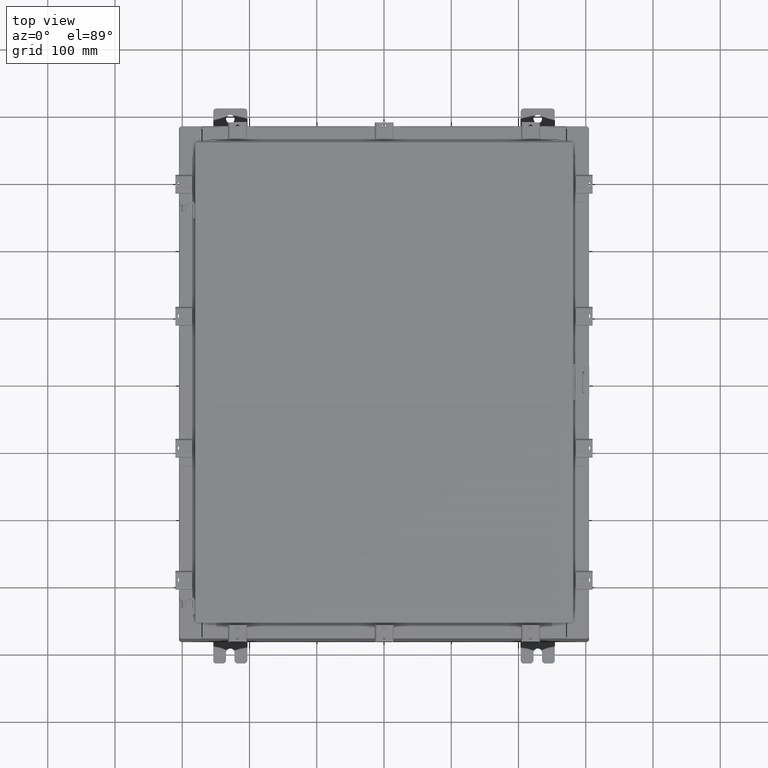
[diagram: clean part render]
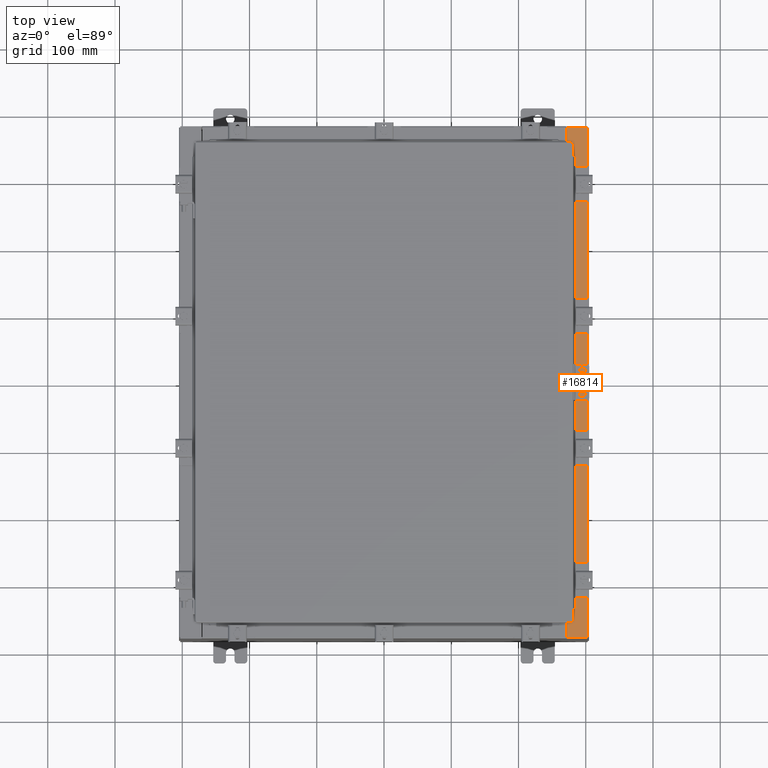
[diagram: same view with one face highlighted and labeled with its STEP entity id]
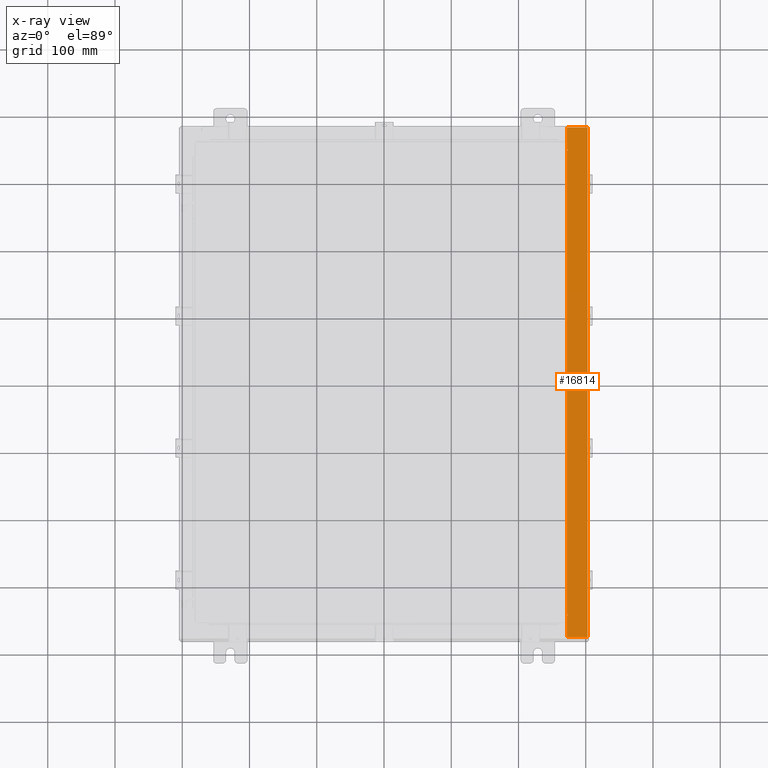
[diagram: x-ray of the same camera — body ghosted, the highlighted face saturated]
A machine part, top view. The second image highlights one B-rep face of the part: STEP entity #16814.
The next image is the same camera in x-ray: the body ghosted, the highlighted face saturated — about 0% of this face is hidden behind the body in this view.
In plain terms, the highlighted planar face has unit normal (-0, 0, -1).
Its self-contained STEP definition (entity closure, byte-faithful):
#813 = DIRECTION ( 'NONE',  ( -1.000000000000000000, 0.0000000000000000000, 7.132762385546384700E-015 ) ) ;
#1015 = DIRECTION ( 'NONE',  ( 7.132762385546384700E-015, 0.0000000000000000000, 1.000000000000000000 ) ) ;
#1368 = VECTOR ( 'NONE', #13267, 39.37007874015748100 ) ;
#1422 = EDGE_CURVE ( 'NONE', #15957, #22652, #3517, .T. ) ;
#2070 = CARTESIAN_POINT ( 'NONE',  ( 10.75005000000004100, 13.63109999999999800, 11.92530000000000900 ) ) ;
#2756 = CARTESIAN_POINT ( 'NONE',  ( 10.69970000000003900, 14.92529999999999800, 11.92530000000000900 ) ) ;
#2842 = LINE ( 'NONE', #10389, #21291 ) ;
#3045 = ORIENTED_EDGE ( 'NONE', *, *, #21147, .F. ) ;
#3236 = AXIS2_PLACEMENT_3D ( 'NONE', #9725, #22240, #11539 ) ;
#3377 = EDGE_CURVE ( 'NONE', #4716, #4833, #18521, .T. ) ;
#3517 = LINE ( 'NONE', #9927, #21963 ) ;
#3978 = VECTOR ( 'NONE', #4594, 39.37007874015748100 ) ;
#4181 = PLANE ( 'NONE',  #21023 ) ;
#4334 = CARTESIAN_POINT ( 'NONE',  ( 10.69970000000003900, -14.92529999999999800, 11.92530000000000900 ) ) ;
#4358 = EDGE_CURVE ( 'NONE', #14957, #5227, #17373, .T. ) ;
#4423 = LINE ( 'NONE', #9729, #8626 ) ;
#4431 = ORIENTED_EDGE ( 'NONE', *, *, #13402, .T. ) ;
#4594 = DIRECTION ( 'NONE',  ( 1.000000000000000000, 0.0000000000000000000, 0.0000000000000000000 ) ) ;
#4608 = FACE_OUTER_BOUND ( 'NONE', #9738, .T. ) ;
#4636 = DIRECTION ( 'NONE',  ( 1.000000000000000000, 0.0000000000000000000, 0.0000000000000000000 ) ) ;
#4656 = DIRECTION ( 'NONE',  ( -0.0000000000000000000, 1.000000000000000000, -0.0000000000000000000 ) ) ;
#4716 = VERTEX_POINT ( 'NONE', #21964 ) ;
#4833 = VERTEX_POINT ( 'NONE', #18672 ) ;
#5112 = CARTESIAN_POINT ( 'NONE',  ( 10.75005000000004100, -13.59375000000000000, 11.92530000000000900 ) ) ;
#5227 = VERTEX_POINT ( 'NONE', #10788 ) ;
#5678 = ORIENTED_EDGE ( 'NONE', *, *, #9904, .F. ) ;
#5695 = CIRCLE ( 'NONE', #3236, 0.01867499999999949400 ) ;
#6007 = VECTOR ( 'NONE', #9544, 39.37007874015748100 ) ;
#6059 = ORIENTED_EDGE ( 'NONE', *, *, #18012, .F. ) ;
#6931 = CARTESIAN_POINT ( 'NONE',  ( 11.91230000000003700, 14.92529999999999800, 11.92530000000000000 ) ) ;
#7769 = CARTESIAN_POINT ( 'NONE',  ( 8.532114493236847900E-014, 0.0000000000000000000, 11.92530000000008500 ) ) ;
#8142 = ORIENTED_EDGE ( 'NONE', *, *, #9925, .F. ) ;
#8205 = LINE ( 'NONE', #18231, #17186 ) ;
#8281 = VERTEX_POINT ( 'NONE', #15729 ) ;
#8626 = VECTOR ( 'NONE', #813, 39.37007874015748100 ) ;
#8733 = LINE ( 'NONE', #17139, #3978 ) ;
#9191 = EDGE_CURVE ( 'NONE', #20750, #17283, #5695, .T. ) ;
#9544 = DIRECTION ( 'NONE',  ( 1.000000000000000000, 0.0000000000000000000, -7.132762385546384700E-015 ) ) ;
#9581 = DIRECTION ( 'NONE',  ( -1.000000000000000000, 0.0000000000000000000, 7.132762385546384700E-015 ) ) ;
#9725 = CARTESIAN_POINT ( 'NONE',  ( 10.75005000000004100, -13.61242500000000000, 11.92530000000000900 ) ) ;
#9729 = CARTESIAN_POINT ( 'NONE',  ( 8.532114493236847900E-014, 14.92529999999999800, 11.92530000000008500 ) ) ;
#9738 = EDGE_LOOP ( 'NONE', ( #8142, #22502, #19140, #15583, #4431, #12502, #11867, #5678, #3045, #16665, #6059, #20440 ) ) ;
#9904 = EDGE_CURVE ( 'NONE', #8281, #17995, #18263, .T. ) ;
#9925 = EDGE_CURVE ( 'NONE', #15957, #20750, #8733, .T. ) ;
#9927 = CARTESIAN_POINT ( 'NONE',  ( 10.69970000000003900, 0.0000000000000000000, 11.92530000000000900 ) ) ;
#10389 = CARTESIAN_POINT ( 'NONE',  ( 10.75005000000004100, 13.63109999999999800, 11.92530000000000900 ) ) ;
#10784 = LINE ( 'NONE', #16691, #6007 ) ;
#10788 = CARTESIAN_POINT ( 'NONE',  ( 11.91230000000003700, -14.92529999999999800, 11.92530000000000000 ) ) ;
#11443 = LINE ( 'NONE', #11465, #1368 ) ;
#11465 = CARTESIAN_POINT ( 'NONE',  ( 10.69970000000003900, 0.0000000000000000000, 11.92530000000000900 ) ) ;
#11539 = DIRECTION ( 'NONE',  ( 1.000000000000000000, 0.0000000000000000000, 0.0000000000000000000 ) ) ;
#11738 = CARTESIAN_POINT ( 'NONE',  ( 10.75005000000004100, 13.61242500000000000, 11.92530000000000900 ) ) ;
#11780 = CARTESIAN_POINT ( 'NONE',  ( 10.71270000000004100, 13.59375000000000000, 11.92530000000000900 ) ) ;
#11861 = EDGE_CURVE ( 'NONE', #17995, #19064, #2842, .T. ) ;
#11867 = ORIENTED_EDGE ( 'NONE', *, *, #11861, .F. ) ;
#12184 = DIRECTION ( 'NONE',  ( -1.000000000000000000, 0.0000000000000000000, 0.0000000000000000000 ) ) ;
#12284 = DIRECTION ( 'NONE',  ( -0.0000000000000000000, -1.000000000000000000, -0.0000000000000000000 ) ) ;
#12502 = ORIENTED_EDGE ( 'NONE', *, *, #22623, .T. ) ;
#12567 = CARTESIAN_POINT ( 'NONE',  ( 10.75005000000004100, -13.63109999999999800, 11.92530000000000900 ) ) ;
#12603 = VECTOR ( 'NONE', #12284, 39.37007874015748100 ) ;
#13116 = AXIS2_PLACEMENT_3D ( 'NONE', #11738, #1015, #13551 ) ;
#13161 = CARTESIAN_POINT ( 'NONE',  ( 10.69970000000003900, -13.63109999999999800, 11.92530000000000900 ) ) ;
#13267 = DIRECTION ( 'NONE',  ( 0.0000000000000000000, -1.000000000000000000, 0.0000000000000000000 ) ) ;
#13402 = EDGE_CURVE ( 'NONE', #14957, #16231, #4423, .T. ) ;
#13551 = DIRECTION ( 'NONE',  ( 1.000000000000000000, 0.0000000000000000000, 0.0000000000000000000 ) ) ;
#14647 = DIRECTION ( 'NONE',  ( -1.000000000000000000, 0.0000000000000000000, 0.0000000000000000000 ) ) ;
#14957 = VERTEX_POINT ( 'NONE', #6931 ) ;
#15583 = ORIENTED_EDGE ( 'NONE', *, *, #4358, .F. ) ;
#15729 = CARTESIAN_POINT ( 'NONE',  ( 10.75005000000004100, 13.59375000000000000, 11.92530000000000900 ) ) ;
#15929 = DIRECTION ( 'NONE',  ( 0.0000000000000000000, -1.000000000000000000, 0.0000000000000000000 ) ) ;
#15957 = VERTEX_POINT ( 'NONE', #13161 ) ;
#16231 = VERTEX_POINT ( 'NONE', #2756 ) ;
#16665 = ORIENTED_EDGE ( 'NONE', *, *, #3377, .F. ) ;
#16691 = CARTESIAN_POINT ( 'NONE',  ( 8.532114493236847900E-014, -14.92529999999999800, 11.92530000000008500 ) ) ;
#16761 = CARTESIAN_POINT ( 'NONE',  ( 10.71270000000004100, -13.59375000000000000, 11.92530000000000900 ) ) ;
#16814 = ADVANCED_FACE ( 'NONE', ( #4608 ), #4181, .F. ) ;
#16847 = VECTOR ( 'NONE', #4656, 39.37007874015748100 ) ;
#17139 = CARTESIAN_POINT ( 'NONE',  ( 10.69970000000003900, -13.63109999999999800, 11.92530000000000900 ) ) ;
#17186 = VECTOR ( 'NONE', #14647, 39.37007874015748100 ) ;
#17283 = VERTEX_POINT ( 'NONE', #5112 ) ;
#17373 = LINE ( 'NONE', #19344, #12603 ) ;
#17506 = CARTESIAN_POINT ( 'NONE',  ( 10.69970000000003900, 13.63109999999999800, 11.92530000000000900 ) ) ;
#17578 = EDGE_CURVE ( 'NONE', #22652, #5227, #10784, .T. ) ;
#17995 = VERTEX_POINT ( 'NONE', #2070 ) ;
#18012 = EDGE_CURVE ( 'NONE', #17283, #4716, #8205, .T. ) ;
#18231 = CARTESIAN_POINT ( 'NONE',  ( 10.75005000000004100, -13.59375000000000000, 11.92530000000000900 ) ) ;
#18263 = CIRCLE ( 'NONE', #13116, 0.01867499999999949400 ) ;
#18521 = LINE ( 'NONE', #16761, #16847 ) ;
#18672 = CARTESIAN_POINT ( 'NONE',  ( 10.71270000000004100, 13.59375000000000000, 11.92530000000000900 ) ) ;
#19064 = VERTEX_POINT ( 'NONE', #17506 ) ;
#19140 = ORIENTED_EDGE ( 'NONE', *, *, #17578, .T. ) ;
#19344 = CARTESIAN_POINT ( 'NONE',  ( 11.91230000000003700, -14.92529999999999800, 11.92530000000000000 ) ) ;
#20311 = DIRECTION ( 'NONE',  ( -7.132762385546384700E-015, 0.0000000000000000000, -1.000000000000000000 ) ) ;
#20440 = ORIENTED_EDGE ( 'NONE', *, *, #9191, .F. ) ;
#20750 = VERTEX_POINT ( 'NONE', #12567 ) ;
#21023 = AXIS2_PLACEMENT_3D ( 'NONE', #7769, #20311, #9581 ) ;
#21147 = EDGE_CURVE ( 'NONE', #4833, #8281, #22397, .T. ) ;
#21291 = VECTOR ( 'NONE', #12184, 39.37007874015748100 ) ;
#21834 = VECTOR ( 'NONE', #4636, 39.37007874015748100 ) ;
#21963 = VECTOR ( 'NONE', #15929, 39.37007874015748100 ) ;
#21964 = CARTESIAN_POINT ( 'NONE',  ( 10.71270000000004100, -13.59375000000000000, 11.92530000000000900 ) ) ;
#22240 = DIRECTION ( 'NONE',  ( 7.132762385546384700E-015, 0.0000000000000000000, 1.000000000000000000 ) ) ;
#22397 = LINE ( 'NONE', #11780, #21834 ) ;
#22502 = ORIENTED_EDGE ( 'NONE', *, *, #1422, .T. ) ;
#22623 = EDGE_CURVE ( 'NONE', #16231, #19064, #11443, .T. ) ;
#22652 = VERTEX_POINT ( 'NONE', #4334 ) ;